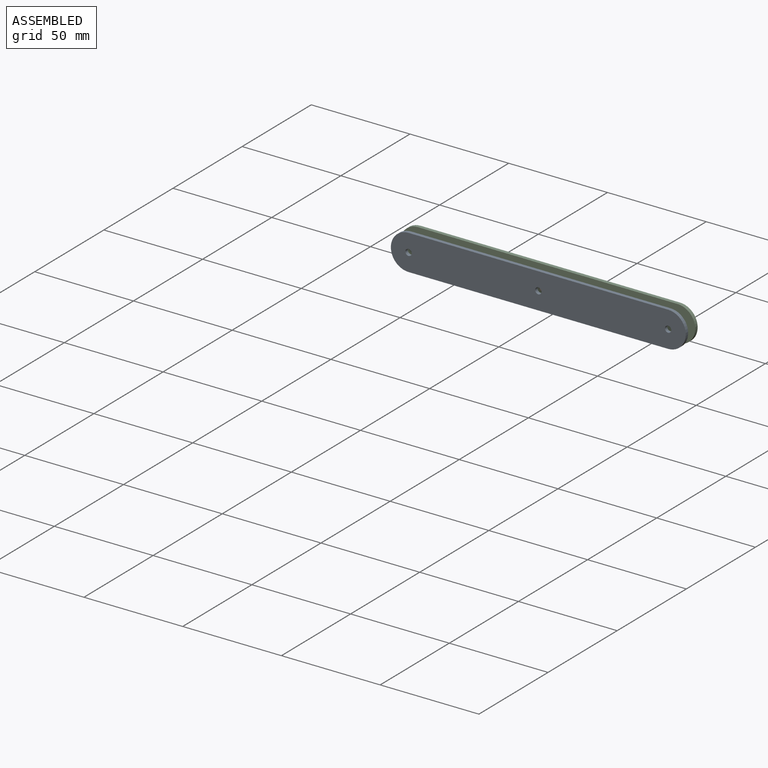
[diagram: assembled view]
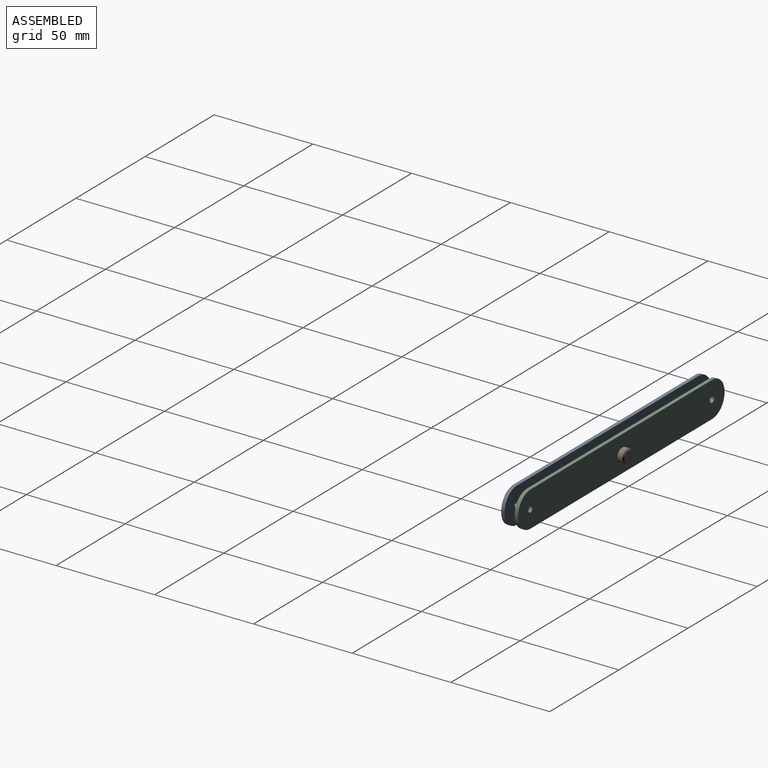
[diagram: assembled view, second angle]
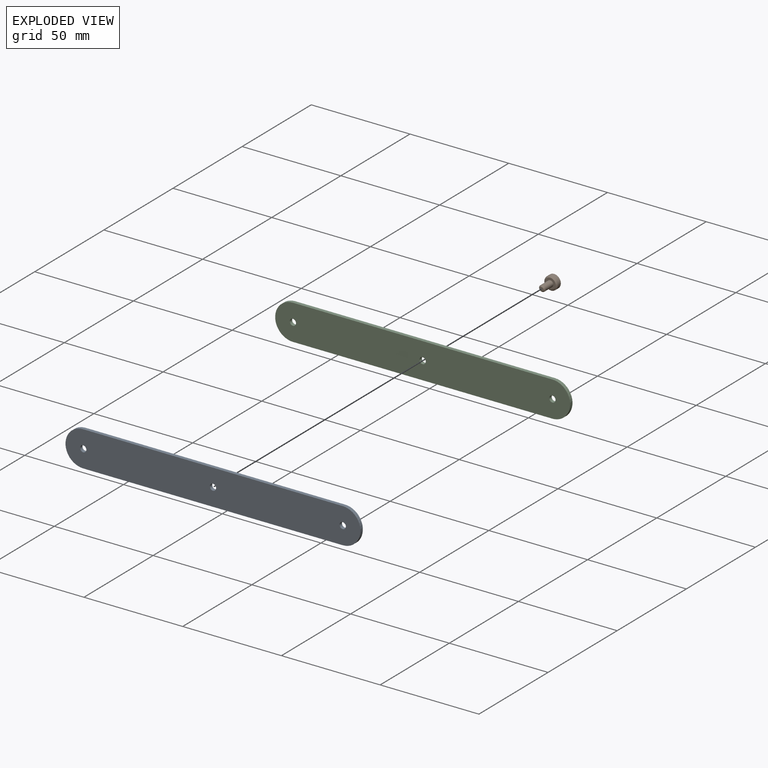
[diagram: exploded view]
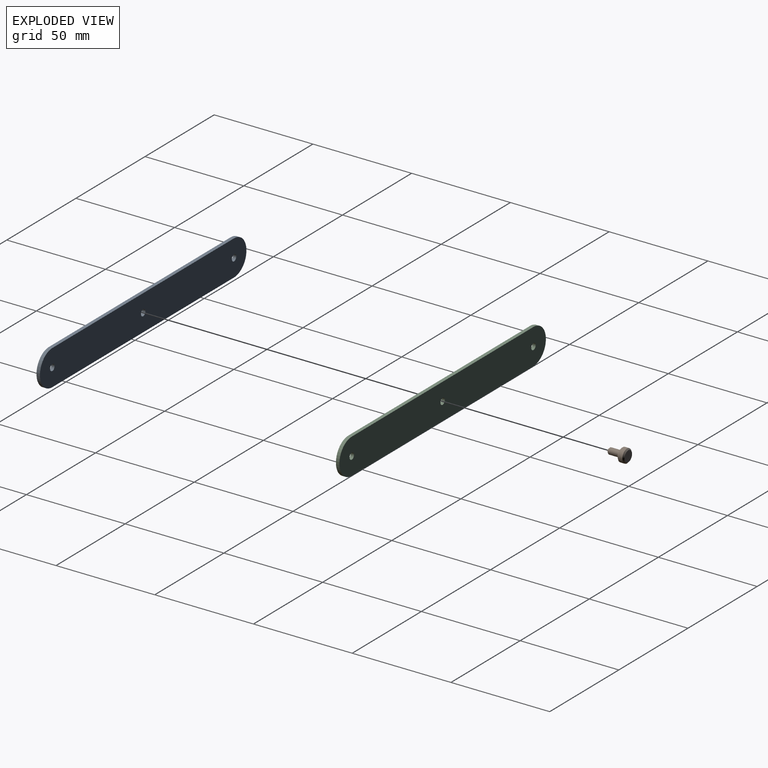
[diagram: exploded view, second angle]
ASSEMBLY  parts=3 mates=2
PART A: 9 faces, bbox 149.4x17.9x1.8 mm
  f0: plane 149.35x17.93mm, normal (0,0,1), area 2585.5mm2, adj f2,f3,f4,f5,f6,f7,f8
  f1: plane 149.35x17.93mm, normal (0,0,-1), area 2585.5mm2, adj f2,f3,f4,f5,f6,f7,f8
  f2: plane 131.42x1.75mm, normal (0,1,0), area 230.3mm2, adj f0,f1,f3,f5
  f3: cylinder r=8.97mm len=17.93mm, axis (0,0,-1), area 49.4mm2, adj f0,f1,f2,f4
  f4: plane 131.42x1.75mm, normal (0,-1,0), area 230.3mm2, adj f0,f1,f3,f5
  f5: cylinder r=8.97mm len=17.93mm, axis (0,0,-1), area 49.4mm2, adj f0,f1,f2,f4
  f6: cylinder r=1.59mm len=3.18mm, axis (0,0,1), area 17.5mm2, adj f0,f1
  f7: cylinder r=1.59mm len=3.18mm, axis (0,0,1), area 17.5mm2, adj f0,f1
  f8: cylinder r=1.59mm len=3.18mm, axis (0,0,1), area 17.5mm2, adj f0,f1
PART B: 8 faces, bbox 6.8x9.9x6.8 mm
  f0: plane 5.49x5.49mm, normal (0,1,0), area 23.6mm2, adj f5
  f1: cylinder r=3.38mm len=6.76mm, axis (0,1,0), area 47.4mm2, adj f5,f6
  f2: plane 5.49x5.49mm, normal (0,-1,0), area 15.7mm2, adj f3,f6
  f3: cylinder r=1.59mm len=5.72mm, axis (0,1,0), area 57mm2, adj f2,f7
  f4: plane 1.91x1.91mm, normal (0,-1,0), area 2.9mm2, adj f7
  f5: cone r=2.74mm half-angle=45deg, axis (0,-1,0), area 17.3mm2, adj f0,f1
  f6: cone r=3.38mm half-angle=45deg, axis (0,1,0), area 17.3mm2, adj f1,f2
  f7: cone r=1.59mm half-angle=45deg, axis (0,1,0), area 7.2mm2, adj f3,f4
PART C: same geometry as A
PLACE A rot(axis=(-1,0,0),90deg) t=(-4.26,-15.31,-8.43)mm
PLACE B t=(-4.26,-13.07,-8.43)mm
PLACE C rot(axis=(1,0,0),90deg) t=(-4.26,-6.72,-8.43)mm
MATE cylindrical B.f1 <-> A.f6  axis (0,1,0) through (-4.26,-12.44,-8.43)mm
MATE revolute C.f6 <-> B.f1  axis (0,1,0) through (-4.26,-6.72,-8.43)mm
